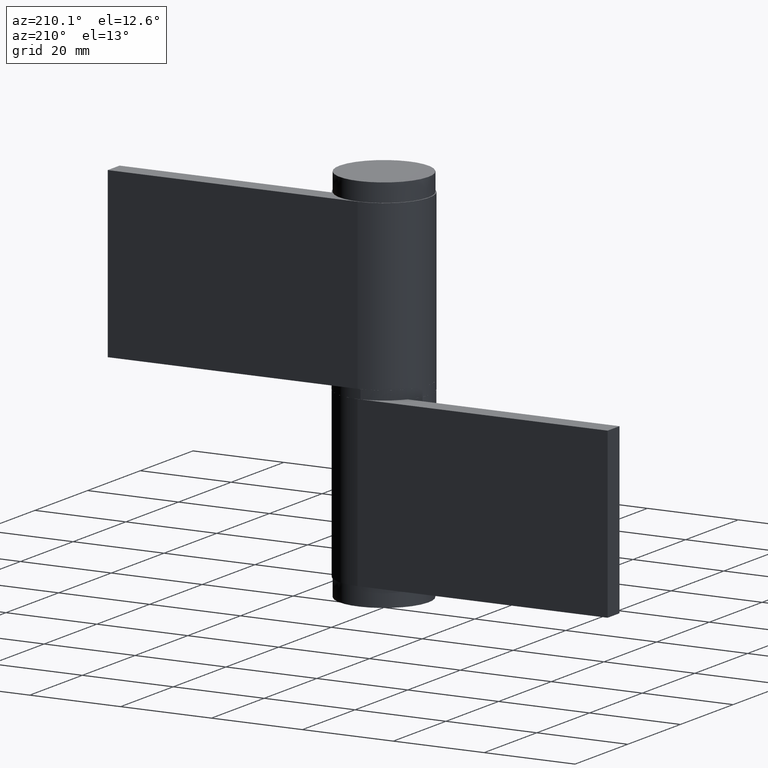
[diagram: clean part render]
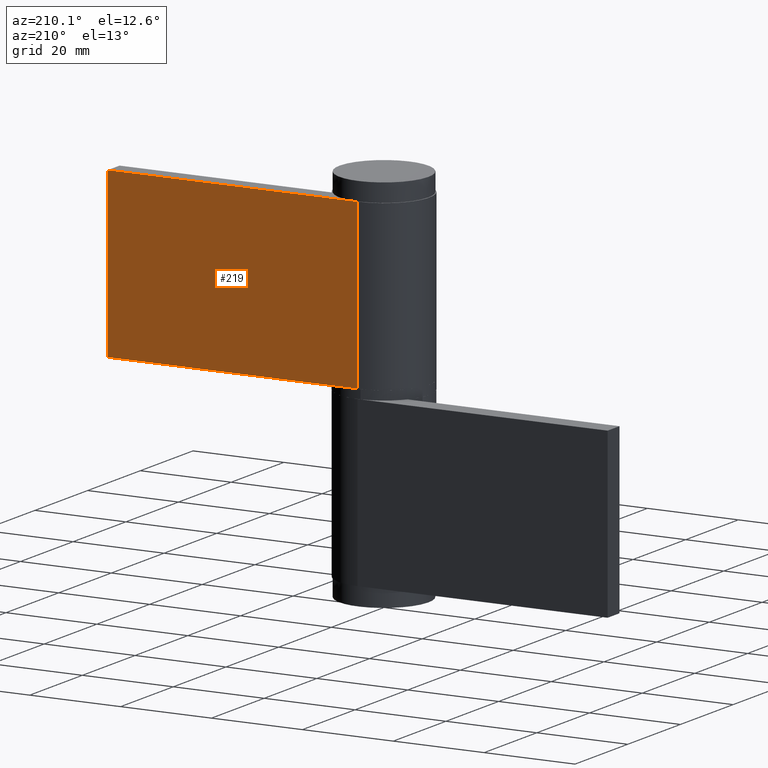
[diagram: same view with one face highlighted and labeled with its STEP entity id]
A machine part, auxiliary view. The second image highlights one B-rep face of the part: STEP entity #219.
In plain terms, the highlighted face is a freeform B-spline surface patch.
Its self-contained STEP definition (entity closure, byte-faithful):
#49=CARTESIAN_POINT('',(-55.0,10.0,0.0));
#50=VERTEX_POINT('',#49);
#58=CARTESIAN_POINT('',(6.123032E-016,10.0,0.0));
#59=VERTEX_POINT('',#58);
#60=CARTESIAN_POINT('',(6.123032E-016,10.0,0.0));
#61=CARTESIAN_POINT('',(-55.0,10.0,0.0));
#62=QUASI_UNIFORM_CURVE('',1,(#60,#61),.UNSPECIFIED.,.F.,.U.);
#63=EDGE_CURVE('',#59,#50,#62,.T.);
#127=CARTESIAN_POINT('',(-55.0,10.0,36.500000000000000));
#128=VERTEX_POINT('',#127);
#171=CARTESIAN_POINT('',(6.123032E-016,10.0,36.500000000000000));
#172=VERTEX_POINT('',#171);
#192=CARTESIAN_POINT('',(6.123032E-016,10.0,36.500000000000000));
#193=CARTESIAN_POINT('',(-55.0,10.0,36.500000000000000));
#194=QUASI_UNIFORM_CURVE('',1,(#192,#193),.UNSPECIFIED.,.F.,.U.);
#195=EDGE_CURVE('',#172,#128,#194,.T.);
#200=CARTESIAN_POINT('',(-57.747249893399328,10.0,38.323174929255920));
#201=CARTESIAN_POINT('',(-57.747249893399328,10.0,-1.823175908262210));
#202=CARTESIAN_POINT('',(2.747251368614286,10.0,38.323174929255920));
#203=CARTESIAN_POINT('',(2.747251368614286,10.0,-1.823175908262210));
#204=B_SPLINE_SURFACE_WITH_KNOTS('',1,1,((#200,#202),(#201,#203)),.UNSPECIFIED.,.F.,.F.,.U.,(2,2),(2,2),(0.0,40.146350837518128),(0.0,60.494501262013607),.UNSPECIFIED.);
#205=ORIENTED_EDGE('',*,*,#63,.T.);
#206=CARTESIAN_POINT('',(-55.0,10.0,36.500000000000000));
#207=CARTESIAN_POINT('',(-55.0,10.0,0.0));
#208=QUASI_UNIFORM_CURVE('',1,(#206,#207),.UNSPECIFIED.,.F.,.U.);
#209=EDGE_CURVE('',#128,#50,#208,.T.);
#210=ORIENTED_EDGE('',*,*,#209,.F.);
#211=ORIENTED_EDGE('',*,*,#195,.F.);
#212=CARTESIAN_POINT('',(6.123032E-016,10.0,36.500000000000000));
#213=CARTESIAN_POINT('',(6.123032E-016,10.0,0.0));
#214=QUASI_UNIFORM_CURVE('',1,(#212,#213),.UNSPECIFIED.,.F.,.U.);
#215=EDGE_CURVE('',#172,#59,#214,.T.);
#216=ORIENTED_EDGE('',*,*,#215,.T.);
#217=EDGE_LOOP('',(#205,#210,#211,#216));
#218=FACE_OUTER_BOUND('',#217,.T.);
#219=ADVANCED_FACE('',(#218),#204,.F.);